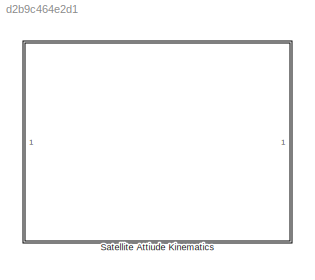
MODEL slx_d2b9c464e2d1
KIND library
CONFIG AbsTol = auto
CONFIG EnableMultiTasking = off
CONFIG FixedStep = auto
CONFIG MaxStep = auto
CONFIG MinStep = auto
CONFIG RelTol = 1e-3
CONFIG SampleTimeConstraint = Unconstrained
CONFIG SolverName = VariableStepAuto
CONFIG StartTime = 0.0
CONFIG StopTime = 10.0
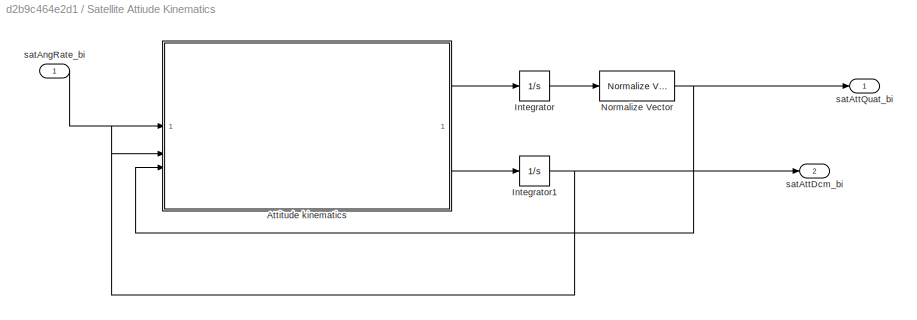
BLOCK [SubSystem] Satellite Attiude Kinematics
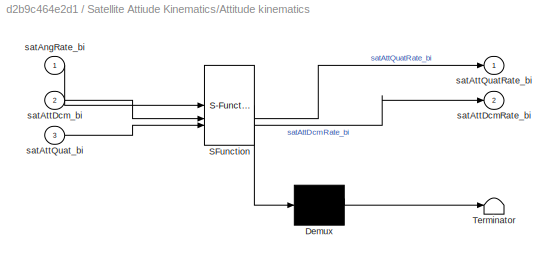
BLOCK [SubSystem] Satellite Attiude Kinematics/Attitude kinematics
  ErrorFcn = Stateflow.Translate.translate
  PermitHierarchicalResolution = ExplicitOnly
  SFBlockType = MATLAB Function
  TreatAsAtomicUnit = on
BLOCK [Demux] Satellite Attiude Kinematics/Attitude kinematics/ Demux 
  Outputs = 1
BLOCK [S-Function] Satellite Attiude Kinematics/Attitude kinematics/ SFunction 
  EnableBusSupport = off
  FunctionName = sf_sfun
  PortCounts = [3 3]
  SFcnIsStateOwnerBlock = off
  SFunctionDeploymentMode = off
  Tag = Stateflow S-Function 2
BLOCK [Terminator] Satellite Attiude Kinematics/Attitude kinematics/ Terminator 
BLOCK [Inport] Satellite Attiude Kinematics/Attitude kinematics/satAngRate_bi
BLOCK [Outport] Satellite Attiude Kinematics/Attitude kinematics/satAttDcmRate_bi
  Port = 2
BLOCK [Inport] Satellite Attiude Kinematics/Attitude kinematics/satAttDcm_bi
  Port = 2
BLOCK [Outport] Satellite Attiude Kinematics/Attitude kinematics/satAttQuatRate_bi
BLOCK [Inport] Satellite Attiude Kinematics/Attitude kinematics/satAttQuat_bi
  Port = 3
BLOCK [Integrator] Satellite Attiude Kinematics/Integrator
  InitialCondition = satAttQuat0
BLOCK [Integrator] Satellite Attiude Kinematics/Integrator1
  InitialCondition = satAttDcm0
BLOCK [Reference] Satellite Attiude Kinematics/Normalize Vector  REF=vrlib/Utilities/Normalize Vector
  SourceBlock = vrlib/Utilities/Normalize Vector
  SourceType = Normalize Vector
BLOCK [Inport] Satellite Attiude Kinematics/satAngRate_bi
BLOCK [Outport] Satellite Attiude Kinematics/satAttDcm_bi
  Port = 2
BLOCK [Outport] Satellite Attiude Kinematics/satAttQuat_bi
LINE Satellite Attiude Kinematics/Attitude kinematics:1 -> Satellite Attiude Kinematics/Integrator:1
LINE Satellite Attiude Kinematics/Attitude kinematics:2 -> Satellite Attiude Kinematics/Integrator1:1
NET Satellite Attiude Kinematics/Integrator1:1 -> Satellite Attiude Kinematics/Attitude kinematics:2, Satellite Attiude Kinematics/satAttDcm_bi:1
LINE Satellite Attiude Kinematics/Integrator:1 -> Satellite Attiude Kinematics/Normalize Vector:1
NET Satellite Attiude Kinematics/Normalize Vector:1 -> Satellite Attiude Kinematics/Attitude kinematics:3, Satellite Attiude Kinematics/satAttQuat_bi:1
LINE Satellite Attiude Kinematics/satAngRate_bi:1 -> Satellite Attiude Kinematics/Attitude kinematics:1
note: NET lines group one-source signal fan-out (src -> all destinations, sorted); 1:1 wires keep LINE
CHART Satellite Attiude Kinematics/Attitude kinematics states=1 transitions=1
  STATE_LABEL 'eML_blk_kernel()'
  STATE_LABEL 'SCRIPT:\n%satAttKinematics    Sat attitude kinematics calculations for Att, Prop\nfunction [satAttQuatRate_bi,satAttDcmRate_bi]= satAttKinematics( ...\n    satAngRate_bi,satAttDcm_bi,satAttQuat_bi ... % Inputs\n    )% Parameters\n%-------------------------------------------------------------------------------\n% DCM Rates\n\n% Construct angular rate skew symmetric matrix\nomegaSkew = [0 -satAngRate_bi(3) s...<+970ch>'
CHART  states=0 transitions=0
